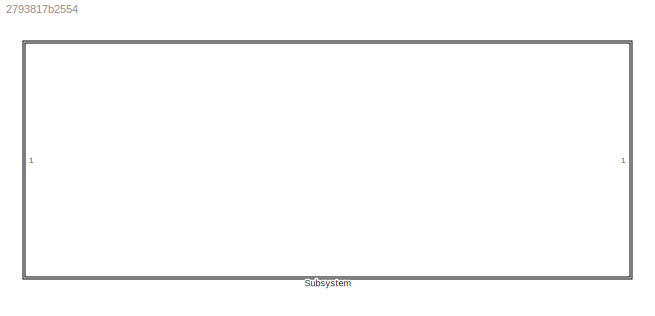
MODEL slx_2793817b2554
KIND model
CONFIG AbsTol = auto
CONFIG EnableMultiTasking = off
CONFIG FixedStep = auto
CONFIG MaxStep = auto
CONFIG MinStep = auto
CONFIG RelTol = 1e-3
CONFIG SampleTimeConstraint = Unconstrained
CONFIG SolverName = VariableStepAuto
CONFIG StartTime = 0.0
CONFIG StopTime = 10.0
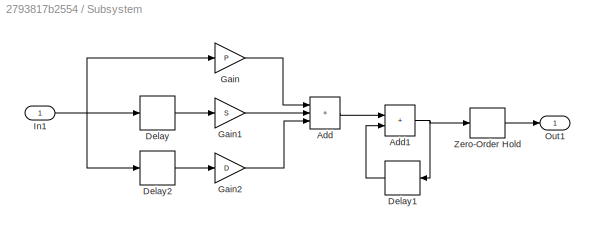
BLOCK [SubSystem] Subsystem
BLOCK [Sum] Subsystem/Add
  IconShape = rectangular
  Inputs = +++
BLOCK [Sum] Subsystem/Add1
  IconShape = rectangular
BLOCK [Delay] Subsystem/Delay
  DelayLength = 1
  InputPortMap = u0
  SampleTime = Tvz
BLOCK [Delay] Subsystem/Delay1
  DelayLength = 1
  InputPortMap = u0
  NameLocation = top
  SampleTime = Tvz
BLOCK [Delay] Subsystem/Delay2
  InputPortMap = u0
  SampleTime = Tvz
BLOCK [Gain] Subsystem/Gain
  Gain = P
BLOCK [Gain] Subsystem/Gain1
  Gain = S
BLOCK [Gain] Subsystem/Gain2
  Gain = D
BLOCK [Inport] Subsystem/In1
BLOCK [Outport] Subsystem/Out1
BLOCK [ZeroOrderHold] Subsystem/Zero-Order Hold
  SampleTime = Tvz
NET Subsystem/Add1:1 -> Subsystem/Delay1:1, Subsystem/Zero-Order Hold:1
LINE Subsystem/Add:1 -> Subsystem/Add1:1
LINE Subsystem/Delay1:1 -> Subsystem/Add1:2
LINE Subsystem/Delay2:1 -> Subsystem/Gain2:1
LINE Subsystem/Delay:1 -> Subsystem/Gain1:1
LINE Subsystem/Gain1:1 -> Subsystem/Add:2
LINE Subsystem/Gain2:1 -> Subsystem/Add:3
LINE Subsystem/Gain:1 -> Subsystem/Add:1
NET Subsystem/In1:1 -> Subsystem/Delay2:1, Subsystem/Delay:1, Subsystem/Gain:1
LINE Subsystem/Zero-Order Hold:1 -> Subsystem/Out1:1
note: NET lines group one-source signal fan-out (src -> all destinations, sorted); 1:1 wires keep LINE
